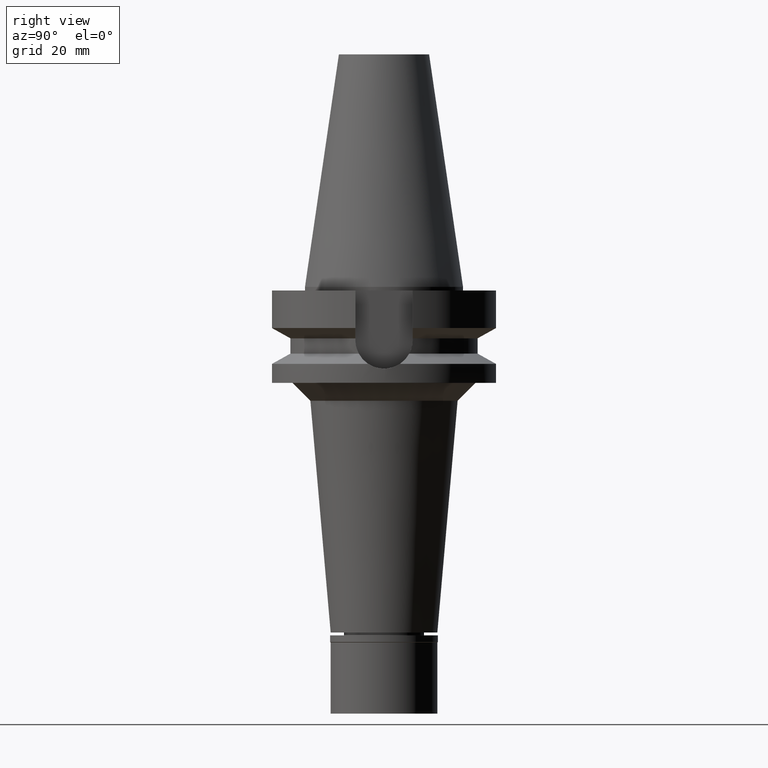
[diagram: clean part render]
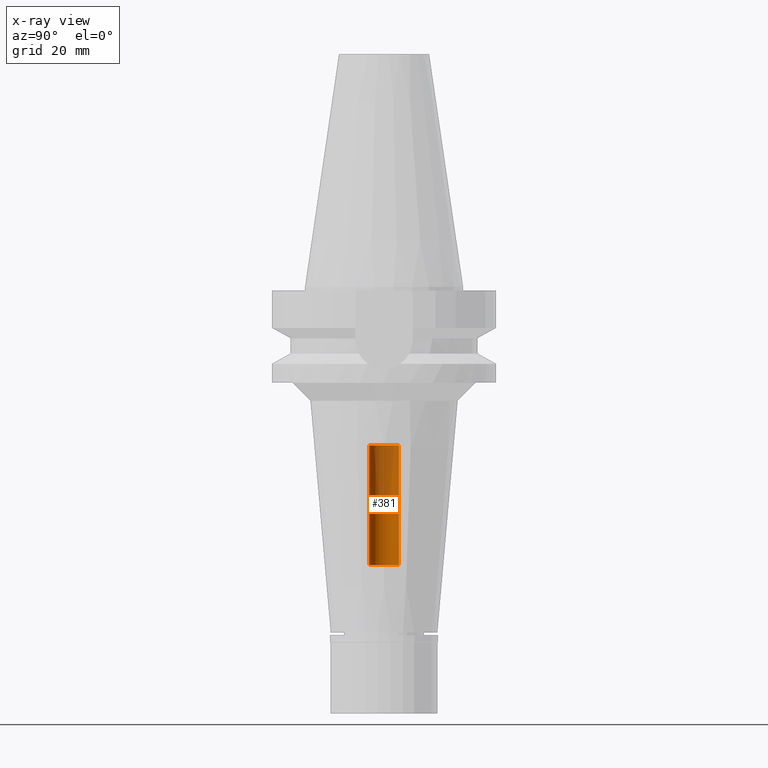
[diagram: x-ray — body ghosted, one internal face saturated and labeled with its STEP entity id]
A machine part, right view, then the same camera in x-ray: the body is ghosted and one INTERNAL B-rep face — a face not visible from any outside direction — is saturated and labeled: STEP entity #381.
In plain terms, the highlighted cylindrical surface (edge-blend (fillet) strip) has radius 4.2 mm, axis along (0, 0, -1).
Its self-contained STEP definition (entity closure, byte-faithful):
#16 = CIRCLE ( 'NONE', #1000, 4.200000000000000178 ) ;
#173 = DIRECTION ( 'NONE',  ( 0.0000000000000000000, -1.000000000000000000, 0.0000000000000000000 ) ) ;
#331 = VERTEX_POINT ( 'NONE', #927 ) ;
#373 = DIRECTION ( 'NONE',  ( 0.0000000000000000000, 0.0000000000000000000, -1.000000000000000000 ) ) ;
#381 = ADVANCED_FACE ( 'NONE', ( #437 ), #1098, .F. ) ;
#437 = FACE_OUTER_BOUND ( 'NONE', #1629, .T. ) ;
#546 = DIRECTION ( 'NONE',  ( 0.0000000000000000000, 0.0000000000000000000, 1.000000000000000000 ) ) ;
#624 = CARTESIAN_POINT ( 'NONE',  ( 0.0000000000000000000, 2.134987997294000229E-14, -78.29999999999999716 ) ) ;
#738 = EDGE_CURVE ( 'NONE', #2179, #331, #2261, .T. ) ;
#752 = DIRECTION ( 'NONE',  ( 0.0000000000000000000, 0.0000000000000000000, 1.000000000000000000 ) ) ;
#803 = VERTEX_POINT ( 'NONE', #1358 ) ;
#927 = CARTESIAN_POINT ( 'NONE',  ( 0.0000000000000000000, 4.200000000000000178, -44.60000000000000142 ) ) ;
#953 = LINE ( 'NONE', #2451, #1495 ) ;
#976 = VECTOR ( 'NONE', #546, 1000.000000000000000 ) ;
#1000 = AXIS2_PLACEMENT_3D ( 'NONE', #624, #1870, #173 ) ;
#1098 = CYLINDRICAL_SURFACE ( 'NONE', #2579, 4.200000000000000178 ) ;
#1314 = ORIENTED_EDGE ( 'NONE', *, *, #738, .T. ) ;
#1348 = DIRECTION ( 'NONE',  ( 0.0000000000000000000, -1.000000000000000000, 0.0000000000000000000 ) ) ;
#1358 = CARTESIAN_POINT ( 'NONE',  ( 0.0000000000000000000, -4.200000000000000178, -44.60000000000000142 ) ) ;
#1479 = EDGE_CURVE ( 'NONE', #2588, #2179, #16, .T. ) ;
#1495 = VECTOR ( 'NONE', #752, 1000.000000000000000 ) ;
#1587 = DIRECTION ( 'NONE',  ( 0.0000000000000000000, 0.0000000000000000000, 1.000000000000000000 ) ) ;
#1629 = EDGE_LOOP ( 'NONE', ( #3032, #1795, #2078, #1314 ) ) ;
#1795 = ORIENTED_EDGE ( 'NONE', *, *, #2535, .F. ) ;
#1870 = DIRECTION ( 'NONE',  ( 0.0000000000000000000, 0.0000000000000000000, -1.000000000000000000 ) ) ;
#1983 = CARTESIAN_POINT ( 'NONE',  ( 0.0000000000000000000, 4.200000000000000178, -78.29999999999999716 ) ) ;
#1992 = CIRCLE ( 'NONE', #2807, 4.200000000000000178 ) ;
#2036 = CARTESIAN_POINT ( 'NONE',  ( 0.0000000000000000000, 2.134987997294000229E-14, -44.60000000000000142 ) ) ;
#2078 = ORIENTED_EDGE ( 'NONE', *, *, #1479, .T. ) ;
#2179 = VERTEX_POINT ( 'NONE', #1983 ) ;
#2261 = LINE ( 'NONE', #2955, #976 ) ;
#2451 = CARTESIAN_POINT ( 'NONE',  ( 0.0000000000000000000, -4.200000000000000178, -78.29999999999999716 ) ) ;
#2535 = EDGE_CURVE ( 'NONE', #2588, #803, #953, .T. ) ;
#2547 = CARTESIAN_POINT ( 'NONE',  ( 0.0000000000000000000, 2.134987997294000229E-14, 74.33499999999999375 ) ) ;
#2549 = DIRECTION ( 'NONE',  ( 0.0000000000000000000, 1.000000000000000000, 0.0000000000000000000 ) ) ;
#2579 = AXIS2_PLACEMENT_3D ( 'NONE', #2547, #373, #1348 ) ;
#2588 = VERTEX_POINT ( 'NONE', #2627 ) ;
#2627 = CARTESIAN_POINT ( 'NONE',  ( 0.0000000000000000000, -4.200000000000000178, -78.29999999999999716 ) ) ;
#2788 = EDGE_CURVE ( 'NONE', #331, #803, #1992, .T. ) ;
#2807 = AXIS2_PLACEMENT_3D ( 'NONE', #2036, #1587, #2549 ) ;
#2955 = CARTESIAN_POINT ( 'NONE',  ( 0.0000000000000000000, 4.200000000000000178, -78.29999999999999716 ) ) ;
#3032 = ORIENTED_EDGE ( 'NONE', *, *, #2788, .T. ) ;